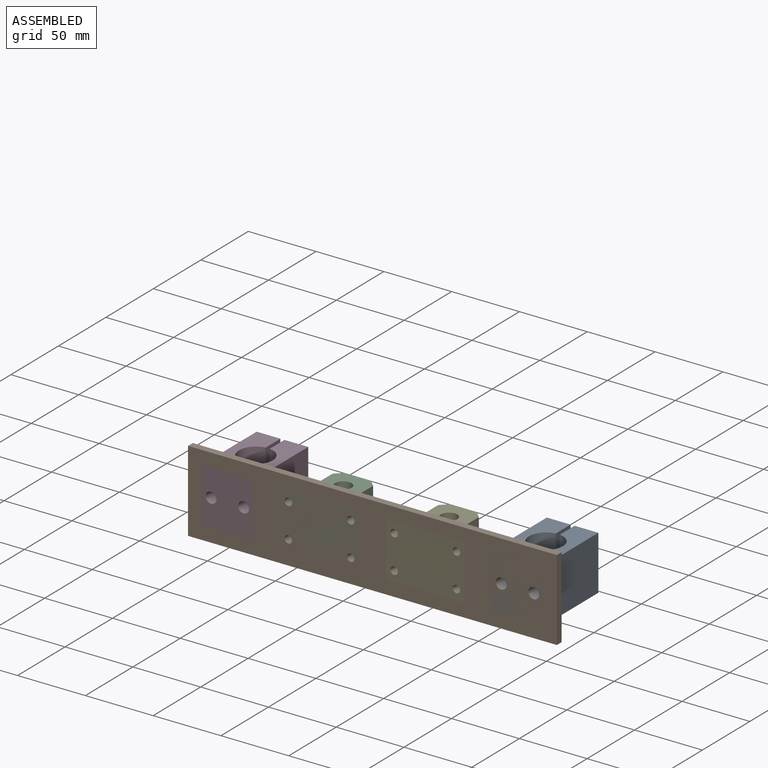
[diagram: assembled view]
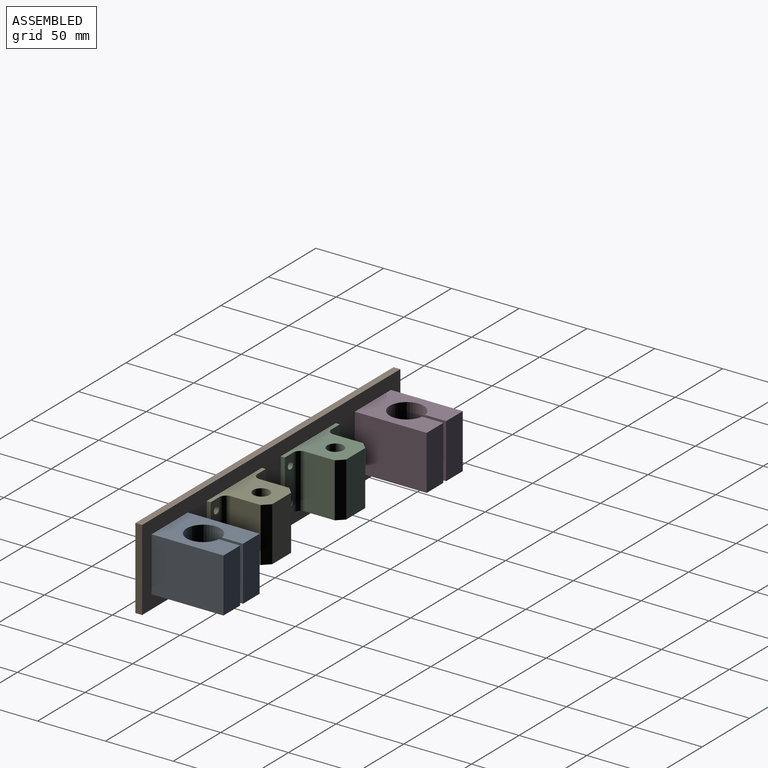
[diagram: assembled view, second angle]
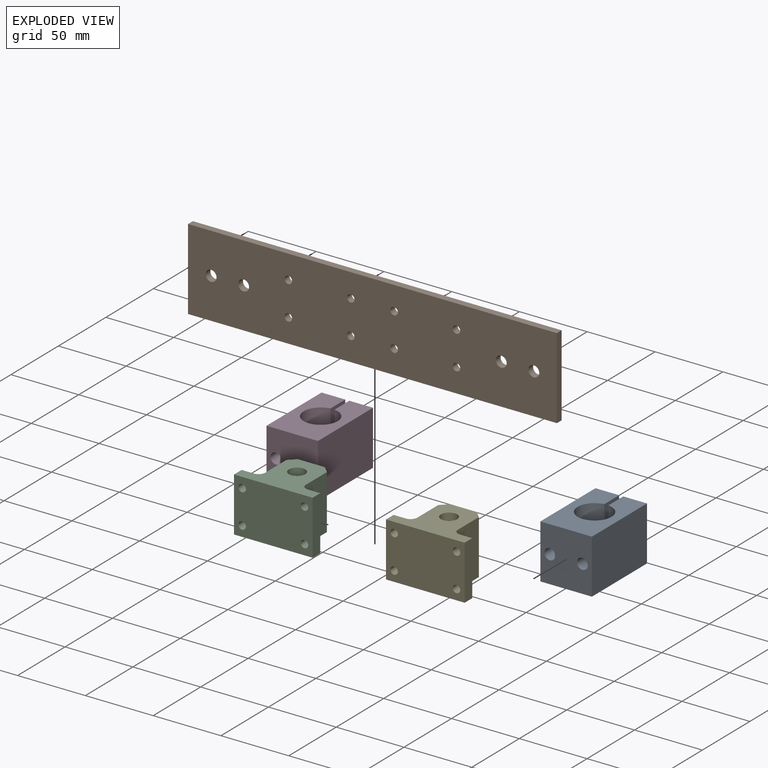
[diagram: exploded view]
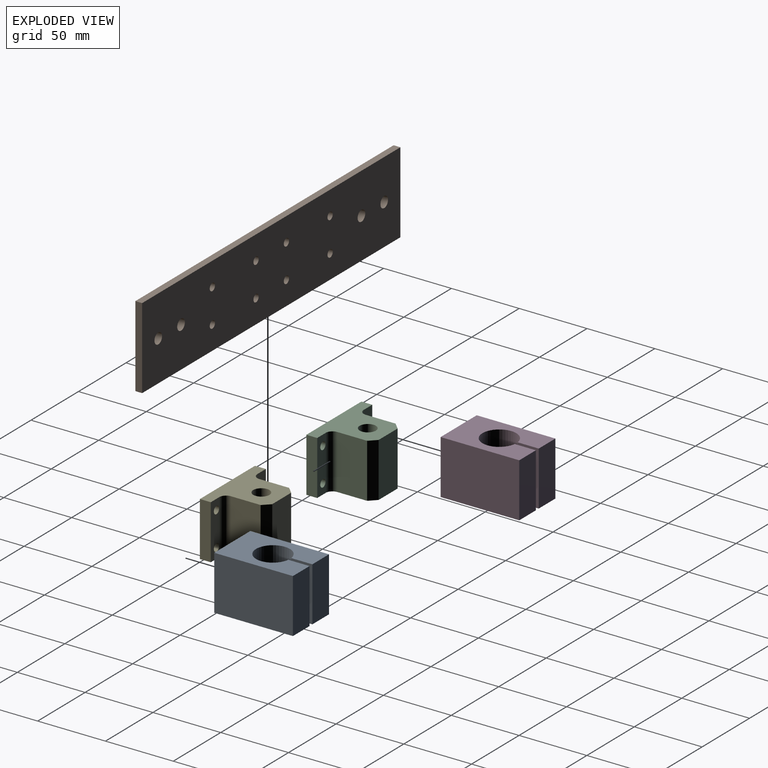
[diagram: exploded view, second angle]
ASSEMBLY  parts=5 mates=3
PART A: 14 faces, bbox 38x40x58 mm
  f0: plane 40x15.59mm, normal (-1,0,0), area 623.6mm2, adj f1,f7,f8,f9
  f1: cylinder r=12.5mm len=40mm, axis (0,1,0), area 3021.3mm2, adj f0,f2,f8,f9
  f2: plane 40x15.59mm, normal (1,0,0), area 623.6mm2, adj f1,f3,f8,f9
  f3: plane 40x17.5mm, normal (0,0,1), area 700mm2, adj f2,f4,f8,f9
  f4: plane 58x40mm, normal (-1,0,0), area 2320mm2, adj f3,f5,f8,f9
  f5: plane 40x38mm, normal (0,0,-1), area 1419.5mm2, adj f4,f6,f8,f9,f10,f12
  f6: plane 58x40mm, normal (1,0,0), area 2320mm2, adj f5,f7,f8,f9
  f7: plane 40x17.5mm, normal (0,0,1), area 700mm2, adj f0,f6,f8,f9
  f8: plane 58x38mm, normal (0,-1,0), area 1666.5mm2, adj f0,f1,f2,f3,f4,f5,f6,f7
  f9: plane 58x38mm, normal (0,1,0), area 1666.5mm2, adj f0,f1,f2,f3,f4,f5,f6,f7
  f10: cylinder r=4mm len=16mm, axis (0,0,-1), area 402.1mm2, adj f5,f11
  f11: plane 8x8mm, normal (0,0,-1), area 50.3mm2, adj f10
  f12: cylinder r=4mm len=16mm, axis (0,0,-1), area 402.1mm2, adj f5,f13
  f13: plane 8x8mm, normal (0,0,-1), area 50.3mm2, adj f12
PART B: 18 faces, bbox 272x5x60 mm
  f0: plane 272x5mm, normal (0,0,-1), area 1360mm2, adj f1,f15,f16,f17
  f1: plane 60x5mm, normal (1,0,0), area 300mm2, adj f0,f2,f16,f17
  f2: plane 272x5mm, normal (0,0,1), area 1360mm2, adj f1,f15,f16,f17
  f3: cylinder r=4mm len=8mm, axis (0,1,0), area 125.7mm2, adj f16,f17
  f4: cylinder r=4mm len=8mm, axis (0,1,0), area 125.7mm2, adj f16,f17
  f5: cylinder r=4mm len=8mm, axis (0,1,0), area 125.7mm2, adj f16,f17
  f6: cylinder r=4mm len=8mm, axis (0,1,0), area 125.7mm2, adj f16,f17
  f7: cylinder r=2.75mm len=5.5mm, axis (0,1,0), area 86.4mm2, adj f16,f17
  f8: cylinder r=2.75mm len=5.5mm, axis (0,1,0), area 86.4mm2, adj f16,f17
  f9: cylinder r=2.75mm len=5.5mm, axis (0,1,0), area 86.4mm2, adj f16,f17
  f10: cylinder r=2.75mm len=5.5mm, axis (0,1,0), area 86.4mm2, adj f16,f17
  f11: cylinder r=2.75mm len=5.5mm, axis (0,1,0), area 86.4mm2, adj f16,f17
  f12: cylinder r=2.75mm len=5.5mm, axis (0,1,0), area 86.4mm2, adj f16,f17
  f13: cylinder r=2.75mm len=5.5mm, axis (0,1,0), area 86.4mm2, adj f16,f17
  f14: cylinder r=2.75mm len=5.5mm, axis (0,1,0), area 86.4mm2, adj f16,f17
  f15: plane 60x5mm, normal (-1,0,0), area 300mm2, adj f0,f2,f16,f17
  f16: plane 272x60mm, normal (0,-1,0), area 15928.9mm2, adj f0,f1,f2,f3,f4,f5,f6,f7
  f17: plane 272x60mm, normal (0,1,0), area 15928.9mm2, adj f0,f1,f2,f3,f4,f5,f6,f7
PART C: 19 faces, bbox 58x40x40 mm
  f0: plane 40x22mm, normal (1,0,0), area 880mm2, adj f9,f10,f11,f18
  f1: plane 40x20mm, normal (0,1,0), area 800mm2, adj f9,f10,f11,f12
  f2: plane 40x22mm, normal (-1,0,0), area 880mm2, adj f9,f10,f12,f17
  f3: plane 40x9mm, normal (0,1,0), area 312.5mm2, adj f4,f9,f10,f15,f16,f17
  f4: plane 40x8mm, normal (-1,0,0), area 320mm2, adj f3,f5,f9,f10
  f5: plane 58x40mm, normal (0,-1,0), area 2225mm2, adj f4,f6,f9,f10,f13,f14,f15,f16
  f6: plane 40x8mm, normal (1,0,0), area 320mm2, adj f5,f8,f9,f10
  f7: cylinder r=6mm len=40mm, axis (0,0,-1), area 1508mm2, adj f9,f10
  f8: plane 40x9mm, normal (0,1,0), area 312.5mm2, adj f6,f9,f10,f13,f14,f18
  f9: plane 58x40mm, normal (0,0,1), area 1296.6mm2, adj f0,f1,f2,f3,f4,f5,f6,f7
  f10: plane 58x40mm, normal (0,0,-1), area 1296.6mm2, adj f0,f1,f2,f3,f4,f5,f6,f7
  f11: plane 40x5mm, normal (0.71,0.71,0), area 282.8mm2, adj f0,f1,f9,f10
  f12: plane 40x5mm, normal (-0.71,0.71,0), area 282.8mm2, adj f1,f2,f9,f10
  f13: cylinder r=2.75mm len=8mm, axis (0,1,0), area 138.2mm2, adj f5,f8
  f14: cylinder r=2.75mm len=8mm, axis (0,1,0), area 138.2mm2, adj f5,f8
  f15: cylinder r=2.75mm len=8mm, axis (0,1,0), area 138.2mm2, adj f3,f5
  f16: cylinder r=2.75mm len=8mm, axis (0,1,0), area 138.2mm2, adj f3,f5
  f17: cylinder r=5mm len=40mm, axis (0,0,-1), area 314.2mm2, adj f2,f3,f9,f10
  f18: cylinder r=5mm len=40mm, axis (0,0,-1), area 314.2mm2, adj f0,f8,f9,f10
PART D: same geometry as A
PART E: same geometry as C
PLACE A rot(axis=(-1,0,0),90deg) t=(68.16,-5.95,24.99)mm
PLACE B rot(axis=(1,0,0),180deg) t=(-38.84,-34.95,44.99)mm
PLACE C t=(-77.84,-14.95,24.99)mm
PLACE D rot(axis=(-1,0,0),90deg) t=(-145.84,-5.95,24.99)mm
PLACE E t=(0.16,-14.95,24.99)mm
MATE cylindrical E.f16 <-> B.f13  axis (0,-1,0) through (-22.84,-34.95,57.49)mm
MATE cylindrical A.f10 <-> B.f6  axis (0,-1,0) through (80.16,-34.95,44.99)mm
MATE cylindrical D.f10 <-> B.f4  axis (0,-1,0) through (-133.84,-34.95,44.99)mm
